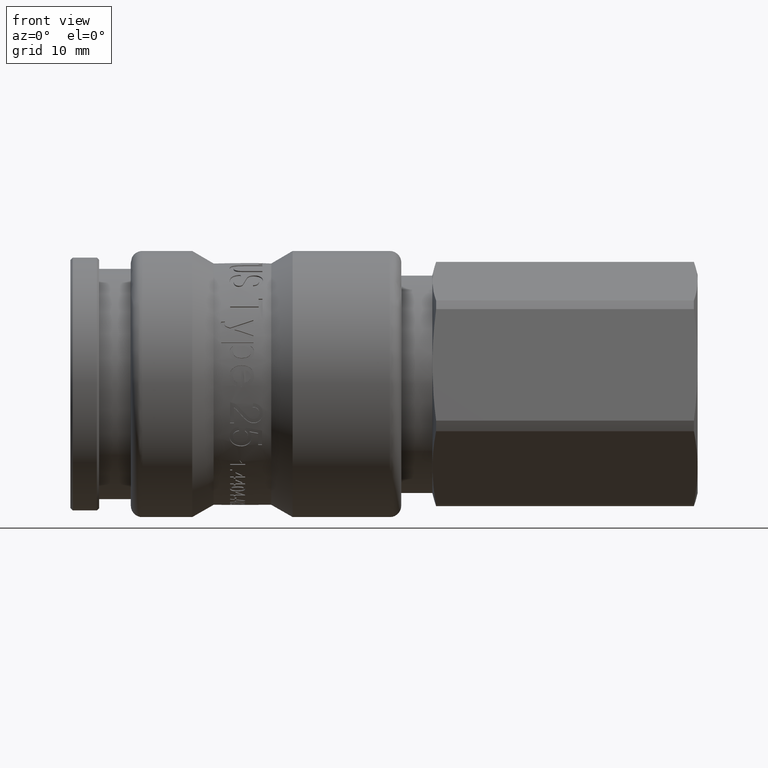
[diagram: clean part render]
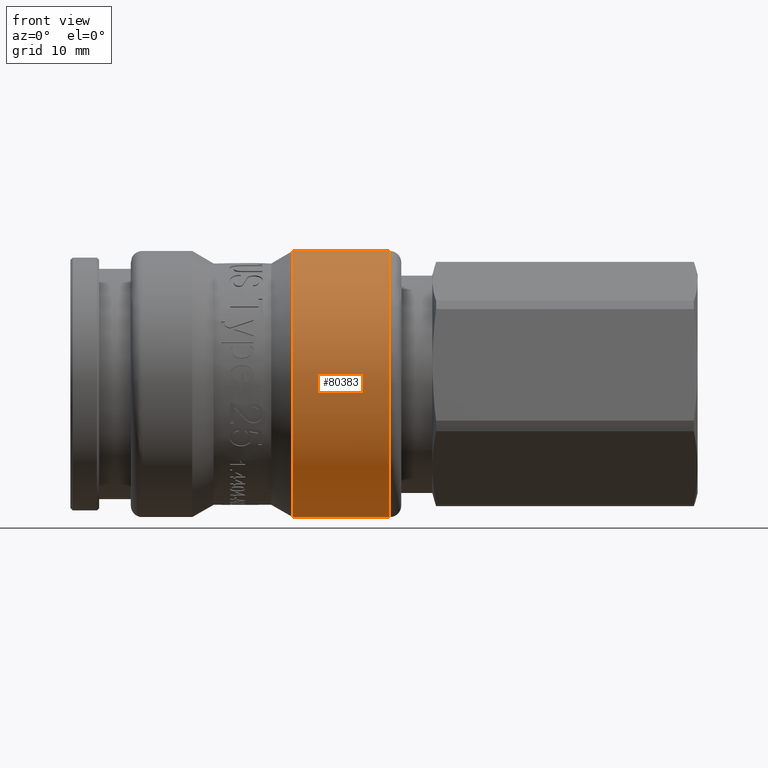
[diagram: same view with one face highlighted and labeled with its STEP entity id]
A machine part, front view. The second image highlights one B-rep face of the part: STEP entity #80383.
In plain terms, the highlighted cylindrical surface (bore or boss wall) has radius 11.575 mm, axis along (1, 0, 0).
Its self-contained STEP definition (entity closure, byte-faithful):
#80341=CARTESIAN_POINT('',(27.750000000000000,8.209837854916225,8.159607061371556));
#80342=VERTEX_POINT('',#80341);
#80343=CARTESIAN_POINT('',(27.750000000000000,0.0,0.0));
#80344=DIRECTION('',(1.000000000000000,0.0,0.0));
#80345=DIRECTION('',(0.0,-0.709273248804858,-0.704933655410070));
#80346=AXIS2_PLACEMENT_3D('',#80343,#80344,#80345);
#80347=CIRCLE('',#80346,11.574999999999999);
#80348=EDGE_CURVE('',#80342,#80342,#80347,.T.);
#80364=CARTESIAN_POINT('',(24.030977309068273,0.0,0.0));
#80365=DIRECTION('',(1.0,0.0,0.0));
#80366=DIRECTION('',(0.0,0.709273248804858,0.704933655410070));
#80367=AXIS2_PLACEMENT_3D('',#80364,#80365,#80366);
#80368=CYLINDRICAL_SURFACE('',#80367,11.574999999999999);
#80369=CARTESIAN_POINT('',(19.311954618136543,8.209837854916225,8.159607061371556));
#80370=VERTEX_POINT('',#80369);
#80371=CARTESIAN_POINT('',(19.311954618136543,0.0,0.0));
#80372=DIRECTION('',(1.000000000000000,0.0,0.0));
#80373=DIRECTION('',(0.0,0.709273248804858,0.704933655410070));
#80374=AXIS2_PLACEMENT_3D('',#80371,#80372,#80373);
#80375=CIRCLE('',#80374,11.574999999999999);
#80376=EDGE_CURVE('',#80370,#80370,#80375,.T.);
#80377=ORIENTED_EDGE('',*,*,#80376,.T.);
#80378=EDGE_LOOP('',(#80377));
#80379=FACE_OUTER_BOUND('',#80378,.T.);
#80380=ORIENTED_EDGE('',*,*,#80348,.F.);
#80381=EDGE_LOOP('',(#80380));
#80382=FACE_BOUND('',#80381,.T.);
#80383=ADVANCED_FACE('',(#80379,#80382),#80368,.T.);